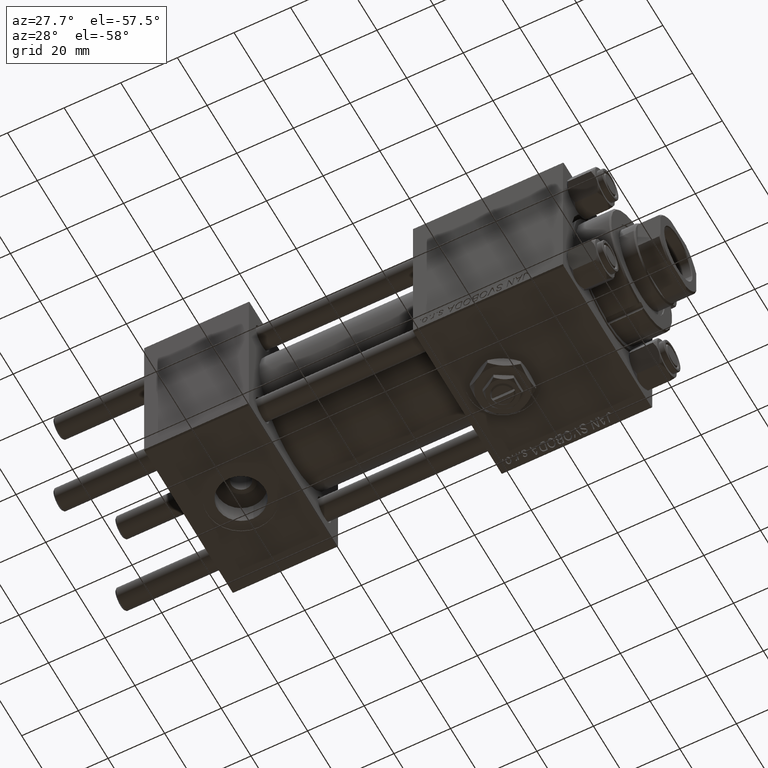
[diagram: clean part render]
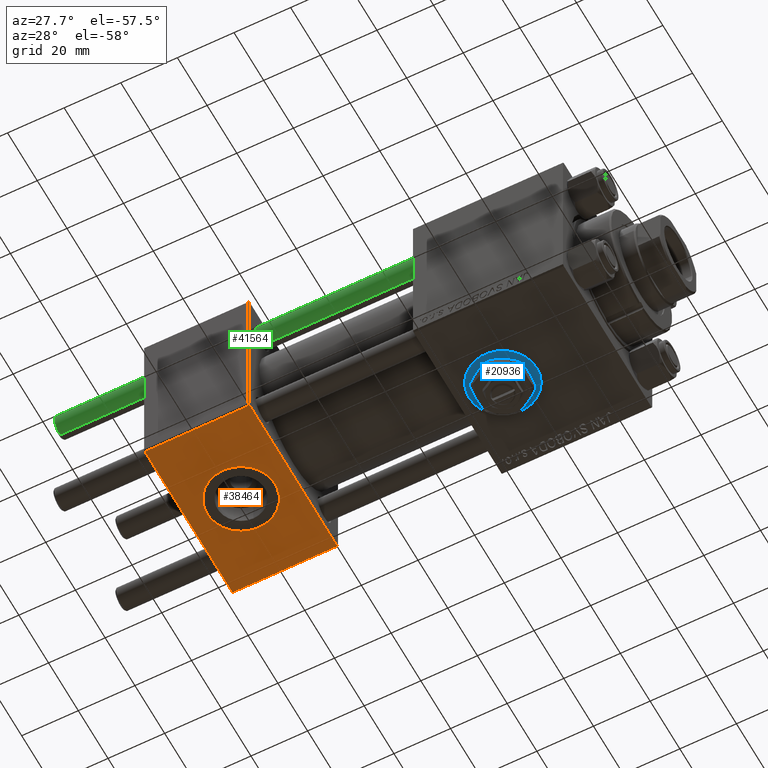
[diagram: same view with three faces highlighted in distinct colors, each labeled with its STEP entity id]
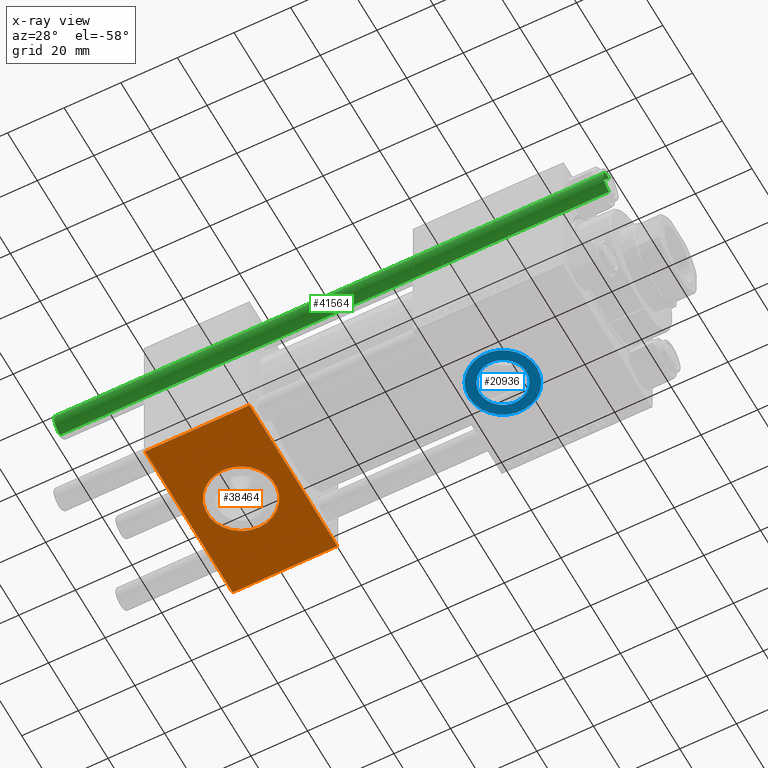
[diagram: x-ray of the same camera — body ghosted, the three highlighted faces saturated]
A machine part, auxiliary view with three faces highlighted in distinct colors.
The next image is the same camera in x-ray (body ghosted, the three faces saturated) — at least one of them is partly hidden behind the body in this view.
Their STEP definitions:

[orange] entity #38464 — the highlighted planar face has unit normal (0, 0, -1).
#562 = EDGE_CURVE ( 'NONE', #45265, #2770, #26979, .T. ) ;
#2657 = DIRECTION ( 'NONE',  ( 0.000000000000000000, -1.000000000000000000, -1.156482317317871725E-16 ) ) ;
#2751 = CARTESIAN_POINT ( 'NONE',  ( 18.50000000000000000, -12.00000000000000178, -30.00000000000000000 ) ) ;
#2770 = VERTEX_POINT ( 'NONE', #10594 ) ;
#2783 = CARTESIAN_POINT ( 'NONE',  ( 18.50000000000000000, 2.651473169999849714E-16, -30.00000000000000355 ) ) ;
#4030 = DIRECTION ( 'NONE',  ( 1.000000000000000000, 0.000000000000000000, 0.000000000000000000 ) ) ;
#5081 = DIRECTION ( 'NONE',  ( 0.000000000000000000, -1.000000000000000000, -1.156482317317871725E-16 ) ) ;
#6303 = DIRECTION ( 'NONE',  ( 0.000000000000000000, 1.000000000000000000, -2.891205793294677833E-16 ) ) ;
#6992 = DIRECTION ( 'NONE',  ( 0.000000000000000000, -1.734723475976806848E-16, -1.000000000000000000 ) ) ;
#8494 = DIRECTION ( 'NONE',  ( 0.000000000000000000, 1.000000000000000000, 1.156482317317871725E-16 ) ) ;
#8783 = VECTOR ( 'NONE', #19452, 1000.000000000000000 ) ;
#9675 = EDGE_CURVE ( 'NONE', #45265, #37948, #29072, .T. ) ;
#10073 = CARTESIAN_POINT ( 'NONE',  ( 37.00000000000000000, 29.99999999999999289, -30.00000000000000000 ) ) ;
#10373 = CARTESIAN_POINT ( 'NONE',  ( 37.00000000000000000, 29.99999999999999289, -30.00000000000000000 ) ) ;
#10482 = AXIS2_PLACEMENT_3D ( 'NONE', #51362, #14980, #6303 ) ;
#10594 = CARTESIAN_POINT ( 'NONE',  ( 37.00000000000000000, 29.49999999999997868, -30.00000000000000000 ) ) ;
#11771 = EDGE_LOOP ( 'NONE', ( #15665, #14115, #25450, #13018 ) ) ;
#12935 = CARTESIAN_POINT ( 'NONE',  ( 37.00000000000000000, -29.50000000000000000, -30.00000000000000711 ) ) ;
#13018 = ORIENTED_EDGE ( 'NONE', *, *, #28941, .T. ) ;
#13968 = VECTOR ( 'NONE', #5081, 1000.000000000000000 ) ;
#14115 = ORIENTED_EDGE ( 'NONE', *, *, #562, .T. ) ;
#14265 = EDGE_LOOP ( 'NONE', ( #25385, #18539 ) ) ;
#14980 = DIRECTION ( 'NONE',  ( 0.000000000000000000, -1.734723475976806848E-16, -1.000000000000000000 ) ) ;
#15665 = ORIENTED_EDGE ( 'NONE', *, *, #9675, .F. ) ;
#15763 = CARTESIAN_POINT ( 'NONE',  ( 0.000000000000000000, -29.50000000000001066, -30.00000000000000711 ) ) ;
#17718 = VECTOR ( 'NONE', #2657, 1000.000000000000000 ) ;
#17884 = CARTESIAN_POINT ( 'NONE',  ( 0.000000000000000000, 29.49999999999997868, -30.00000000000000000 ) ) ;
#18539 = ORIENTED_EDGE ( 'NONE', *, *, #31846, .F. ) ;
#18756 = VERTEX_POINT ( 'NONE', #41894 ) ;
#19382 = EDGE_CURVE ( 'NONE', #2770, #21955, #26666, .T. ) ;
#19452 = DIRECTION ( 'NONE',  ( -1.000000000000000000, 0.000000000000000000, 0.000000000000000000 ) ) ;
#20515 = VECTOR ( 'NONE', #4030, 1000.000000000000000 ) ;
#21955 = VERTEX_POINT ( 'NONE', #12935 ) ;
#25385 = ORIENTED_EDGE ( 'NONE', *, *, #27793, .F. ) ;
#25450 = ORIENTED_EDGE ( 'NONE', *, *, #19382, .T. ) ;
#26666 = LINE ( 'NONE', #10073, #17718 ) ;
#26979 = LINE ( 'NONE', #47774, #20515 ) ;
#27084 = CARTESIAN_POINT ( 'NONE',  ( 0.000000000000000000, -29.50000000000000000, -30.00000000000000711 ) ) ;
#27793 = EDGE_CURVE ( 'NONE', #18756, #49525, #45812, .T. ) ;
#28941 = EDGE_CURVE ( 'NONE', #21955, #37948, #35264, .T. ) ;
#29072 = LINE ( 'NONE', #45148, #13968 ) ;
#30095 = AXIS2_PLACEMENT_3D ( 'NONE', #10373, #35634, #8494 ) ;
#30406 = FACE_OUTER_BOUND ( 'NONE', #11771, .T. ) ;
#31846 = EDGE_CURVE ( 'NONE', #49525, #18756, #39883, .T. ) ;
#35264 = LINE ( 'NONE', #15763, #8783 ) ;
#35634 = DIRECTION ( 'NONE',  ( 0.000000000000000000, 1.156482317317871725E-16, -1.000000000000000000 ) ) ;
#37948 = VERTEX_POINT ( 'NONE', #27084 ) ;
#38216 = AXIS2_PLACEMENT_3D ( 'NONE', #2783, #6992, #51039 ) ;
#38464 = ADVANCED_FACE ( 'NONE', ( #51473, #30406 ), #46475, .T. ) ;
#39883 = CIRCLE ( 'NONE', #10482, 12.00000000000000178 ) ;
#41894 = CARTESIAN_POINT ( 'NONE',  ( 18.50000000000000000, 12.00000000000000178, -30.00000000000000711 ) ) ;
#45148 = CARTESIAN_POINT ( 'NONE',  ( 0.000000000000000000, 29.99999999999999289, -30.00000000000000000 ) ) ;
#45265 = VERTEX_POINT ( 'NONE', #17884 ) ;
#45812 = CIRCLE ( 'NONE', #38216, 12.00000000000000178 ) ;
#46475 = PLANE ( 'NONE',  #30095 ) ;
#47774 = CARTESIAN_POINT ( 'NONE',  ( 37.00000000000000000, 29.49999999999997868, -30.00000000000000000 ) ) ;
#49525 = VERTEX_POINT ( 'NONE', #2751 ) ;
#51039 = DIRECTION ( 'NONE',  ( 0.000000000000000000, 1.000000000000000000, -2.891205793294677833E-16 ) ) ;
#51362 = CARTESIAN_POINT ( 'NONE',  ( 18.50000000000000000, 2.651473169999849714E-16, -30.00000000000000355 ) ) ;
#51473 = FACE_BOUND ( 'NONE', #14265, .T. ) ;

[blue] entity #20936 — the highlighted planar face has unit normal (0, 0, -1).
#458 = CARTESIAN_POINT ( 'NONE',  ( 111.0000000000000000, 3.469446951953613794E-15, -29.79999999999999716 ) ) ;
#2183 = CARTESIAN_POINT ( 'NONE',  ( 119.3300000000000125, 4.489577735643358162E-15, -29.79999999999999716 ) ) ;
#2627 = ORIENTED_EDGE ( 'NONE', *, *, #13308, .F. ) ;
#3546 = CARTESIAN_POINT ( 'NONE',  ( 111.0000000000000000, 3.469446951953613794E-15, -29.79999999999999716 ) ) ;
#4654 = EDGE_LOOP ( 'NONE', ( #21132, #2627 ) ) ;
#4807 = CARTESIAN_POINT ( 'NONE',  ( 102.6700000000000017, 3.469446951953613794E-15, -29.79999999999999716 ) ) ;
#5500 = VERTEX_POINT ( 'NONE', #2183 ) ;
#5986 = VERTEX_POINT ( 'NONE', #40809 ) ;
#7710 = DIRECTION ( 'NONE',  ( -1.000000000000000000, 0.000000000000000000, -0.000000000000000000 ) ) ;
#9056 = DIRECTION ( 'NONE',  ( 0.000000000000000000, 0.000000000000000000, -1.000000000000000000 ) ) ;
#11201 = DIRECTION ( 'NONE',  ( -1.000000000000000000, 0.000000000000000000, 0.000000000000000000 ) ) ;
#11672 = DIRECTION ( 'NONE',  ( 0.000000000000000000, 0.000000000000000000, -1.000000000000000000 ) ) ;
#12206 = CARTESIAN_POINT ( 'NONE',  ( 111.0000000000000000, 3.469446951953613794E-15, -29.79999999999999716 ) ) ;
#12340 = DIRECTION ( 'NONE',  ( 0.000000000000000000, 0.000000000000000000, -1.000000000000000000 ) ) ;
#13308 = EDGE_CURVE ( 'NONE', #5500, #18372, #20821, .T. ) ;
#13703 = EDGE_CURVE ( 'NONE', #15192, #5986, #19135, .T. ) ;
#15192 = VERTEX_POINT ( 'NONE', #47422 ) ;
#16656 = CIRCLE ( 'NONE', #38514, 11.99999999999999645 ) ;
#17496 = CARTESIAN_POINT ( 'NONE',  ( 111.0000000000000000, 3.469446951953613794E-15, -29.79999999999999716 ) ) ;
#18372 = VERTEX_POINT ( 'NONE', #4807 ) ;
#19135 = CIRCLE ( 'NONE', #20859, 11.99999999999999645 ) ;
#20821 = CIRCLE ( 'NONE', #51966, 8.330000000000003624 ) ;
#20859 = AXIS2_PLACEMENT_3D ( 'NONE', #458, #12340, #39989 ) ;
#20936 = ADVANCED_FACE ( 'NONE', ( #26219, #27492 ), #27231, .T. ) ;
#20968 = ORIENTED_EDGE ( 'NONE', *, *, #13703, .T. ) ;
#21132 = ORIENTED_EDGE ( 'NONE', *, *, #44157, .F. ) ;
#23543 = DIRECTION ( 'NONE',  ( -1.000000000000000000, 0.000000000000000000, 0.000000000000000000 ) ) ;
#26219 = FACE_BOUND ( 'NONE', #4654, .T. ) ;
#27231 = PLANE ( 'NONE',  #49742 ) ;
#27492 = FACE_OUTER_BOUND ( 'NONE', #40711, .T. ) ;
#30739 = CIRCLE ( 'NONE', #34935, 8.330000000000003624 ) ;
#31956 = CARTESIAN_POINT ( 'NONE',  ( 111.0000000000000000, 3.469446951953613794E-15, -29.79999999999999716 ) ) ;
#34925 = DIRECTION ( 'NONE',  ( 0.000000000000000000, 0.000000000000000000, -1.000000000000000000 ) ) ;
#34935 = AXIS2_PLACEMENT_3D ( 'NONE', #17496, #9056, #49912 ) ;
#38514 = AXIS2_PLACEMENT_3D ( 'NONE', #3546, #34925, #11201 ) ;
#39444 = EDGE_CURVE ( 'NONE', #5986, #15192, #16656, .T. ) ;
#39861 = DIRECTION ( 'NONE',  ( 0.000000000000000000, 0.000000000000000000, -1.000000000000000000 ) ) ;
#39989 = DIRECTION ( 'NONE',  ( -1.000000000000000000, 0.000000000000000000, 0.000000000000000000 ) ) ;
#40711 = EDGE_LOOP ( 'NONE', ( #20968, #40832 ) ) ;
#40809 = CARTESIAN_POINT ( 'NONE',  ( 123.0000000000000000, 4.939023110930435178E-15, -29.79999999999999716 ) ) ;
#40832 = ORIENTED_EDGE ( 'NONE', *, *, #39444, .T. ) ;
#44157 = EDGE_CURVE ( 'NONE', #18372, #5500, #30739, .T. ) ;
#47422 = CARTESIAN_POINT ( 'NONE',  ( 99.00000000000000000, 3.469446951953613794E-15, -29.79999999999999716 ) ) ;
#49742 = AXIS2_PLACEMENT_3D ( 'NONE', #12206, #39861, #7710 ) ;
#49912 = DIRECTION ( 'NONE',  ( -1.000000000000000000, 0.000000000000000000, 0.000000000000000000 ) ) ;
#51966 = AXIS2_PLACEMENT_3D ( 'NONE', #31956, #11672, #23543 ) ;

[green] entity #41564 — the highlighted cylindrical surface (edge-blend (fillet) strip) has radius 4 mm, axis along (1, -0, 0).
#1134 = EDGE_CURVE ( 'NONE', #6108, #51502, #25571, .T. ) ;
#2735 = CYLINDRICAL_SURFACE ( 'NONE', #12522, 4.000000000000000000 ) ;
#3069 = VECTOR ( 'NONE', #29833, 1000.000000000000000 ) ;
#4800 = CARTESIAN_POINT ( 'NONE',  ( 0.000000000000000000, 0.000000000000000000, 194.5000000000000568 ) ) ;
#5110 = AXIS2_PLACEMENT_3D ( 'NONE', #42905, #6785, #30278 ) ;
#5575 = AXIS2_PLACEMENT_3D ( 'NONE', #4800, #41419, #17701 ) ;
#6044 = DIRECTION ( 'NONE',  ( -0.000000000000000000, -0.000000000000000000, -1.000000000000000000 ) ) ;
#6108 = VERTEX_POINT ( 'NONE', #35207 ) ;
#6785 = DIRECTION ( 'NONE',  ( -0.000000000000000000, -0.000000000000000000, 1.000000000000000000 ) ) ;
#12234 = EDGE_CURVE ( 'NONE', #31904, #51155, #37993, .T. ) ;
#12522 = AXIS2_PLACEMENT_3D ( 'NONE', #19856, #35931, #19586 ) ;
#14016 = CARTESIAN_POINT ( 'NONE',  ( 4.000000000000000000, 4.898587196589412829E-16, 195.0000000000000000 ) ) ;
#15795 = CARTESIAN_POINT ( 'NONE',  ( -4.000000000000000000, 0.000000000000000000, 0.5000000000000004441 ) ) ;
#17701 = DIRECTION ( 'NONE',  ( 1.000000000000000000, 0.000000000000000000, 0.000000000000000000 ) ) ;
#18429 = CARTESIAN_POINT ( 'NONE',  ( 4.000000000000000000, 4.898587196589412829E-16, 194.5000000000000568 ) ) ;
#19475 = EDGE_CURVE ( 'NONE', #51155, #51502, #40442, .T. ) ;
#19586 = DIRECTION ( 'NONE',  ( -1.000000000000000000, 0.000000000000000000, 0.000000000000000000 ) ) ;
#19856 = CARTESIAN_POINT ( 'NONE',  ( 0.000000000000000000, 0.000000000000000000, 195.0000000000000000 ) ) ;
#25312 = CARTESIAN_POINT ( 'NONE',  ( -4.000000000000000000, 0.000000000000000000, 195.0000000000000000 ) ) ;
#25571 = LINE ( 'NONE', #25312, #28942 ) ;
#28942 = VECTOR ( 'NONE', #6044, 1000.000000000000000 ) ;
#29133 = CIRCLE ( 'NONE', #5575, 4.000000000000000000 ) ;
#29833 = DIRECTION ( 'NONE',  ( -0.000000000000000000, -0.000000000000000000, -1.000000000000000000 ) ) ;
#29921 = ORIENTED_EDGE ( 'NONE', *, *, #1134, .F. ) ;
#30278 = DIRECTION ( 'NONE',  ( 1.000000000000000000, 0.000000000000000000, 0.000000000000000000 ) ) ;
#31206 = EDGE_LOOP ( 'NONE', ( #34256, #48270, #40684, #29921 ) ) ;
#31904 = VERTEX_POINT ( 'NONE', #18429 ) ;
#34256 = ORIENTED_EDGE ( 'NONE', *, *, #45725, .T. ) ;
#35207 = CARTESIAN_POINT ( 'NONE',  ( -4.000000000000000000, 0.000000000000000000, 194.5000000000000568 ) ) ;
#35878 = CARTESIAN_POINT ( 'NONE',  ( 4.000000000000000000, 4.898587196589412829E-16, 0.5000000000000004441 ) ) ;
#35931 = DIRECTION ( 'NONE',  ( -0.000000000000000000, -0.000000000000000000, -1.000000000000000000 ) ) ;
#37993 = LINE ( 'NONE', #14016, #3069 ) ;
#40442 = CIRCLE ( 'NONE', #5110, 4.000000000000000000 ) ;
#40684 = ORIENTED_EDGE ( 'NONE', *, *, #19475, .T. ) ;
#41419 = DIRECTION ( 'NONE',  ( 0.000000000000000000, 0.000000000000000000, -1.000000000000000000 ) ) ;
#41564 = ADVANCED_FACE ( 'NONE', ( #47530 ), #2735, .T. ) ;
#42905 = CARTESIAN_POINT ( 'NONE',  ( 0.000000000000000000, 0.000000000000000000, 0.5000000000000004441 ) ) ;
#45725 = EDGE_CURVE ( 'NONE', #6108, #31904, #29133, .T. ) ;
#47530 = FACE_OUTER_BOUND ( 'NONE', #31206, .T. ) ;
#48270 = ORIENTED_EDGE ( 'NONE', *, *, #12234, .T. ) ;
#51155 = VERTEX_POINT ( 'NONE', #35878 ) ;
#51502 = VERTEX_POINT ( 'NONE', #15795 ) ;